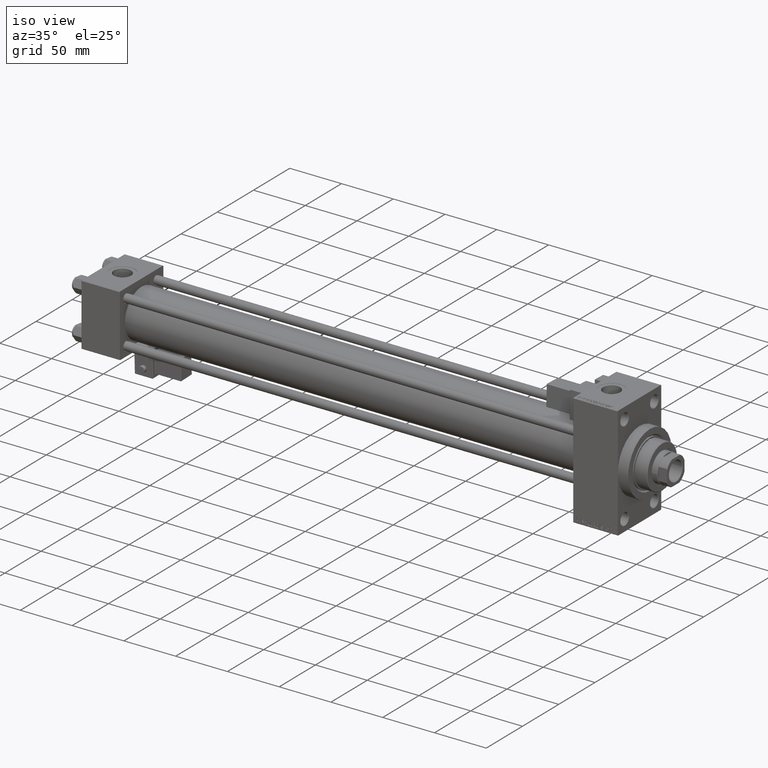
[diagram: clean part render]
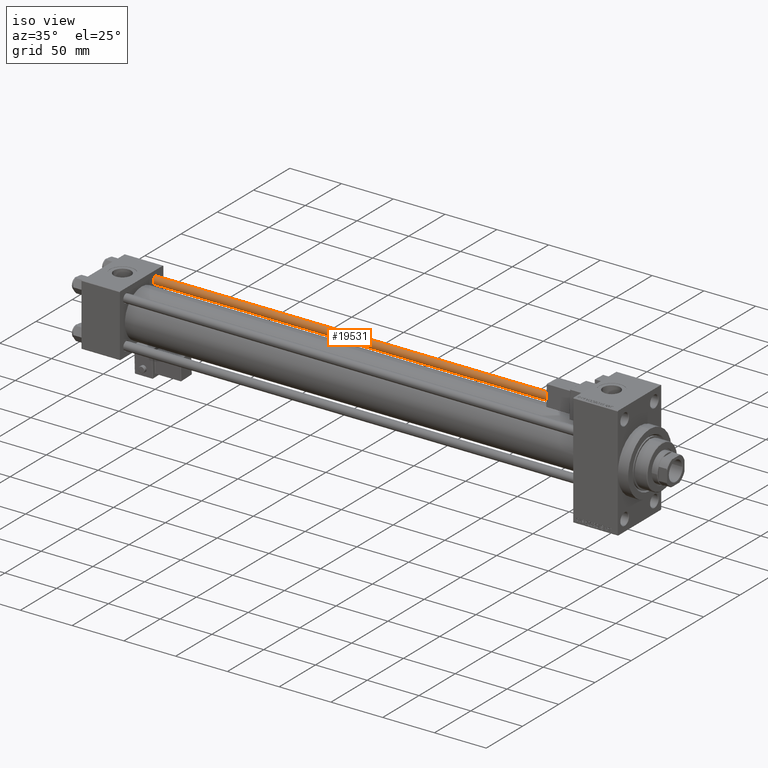
[diagram: same view with one face highlighted and labeled with its STEP entity id]
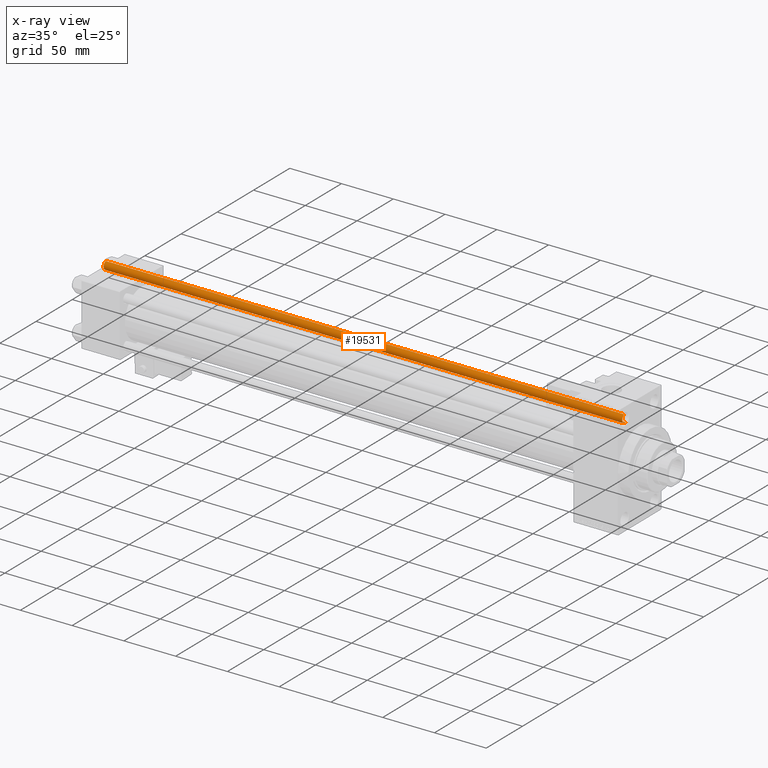
[diagram: x-ray of the same camera — body ghosted, the highlighted face saturated]
A machine part, iso view. The second image highlights one B-rep face of the part: STEP entity #19531.
The next image is the same camera in x-ray: the body ghosted, the highlighted face saturated — about 0% of this face is hidden behind the body in this view.
In plain terms, the highlighted cylindrical surface (edge-blend (fillet) strip) has radius 4 mm, axis along (-1, -0, 0).
Its self-contained STEP definition (entity closure, byte-faithful):
#868 = VERTEX_POINT ( 'NONE', #38161 ) ;
#5007 = DIRECTION ( 'NONE',  ( -0.000000000000000000, -0.000000000000000000, -1.000000000000000000 ) ) ;
#6607 = CIRCLE ( 'NONE', #14665, 4.000000000000000000 ) ;
#6878 = ORIENTED_EDGE ( 'NONE', *, *, #40574, .F. ) ;
#8108 = CARTESIAN_POINT ( 'NONE',  ( 4.000000000000000000, 4.898587196589412829E-16, 502.0000000000000000 ) ) ;
#8109 = AXIS2_PLACEMENT_3D ( 'NONE', #14132, #30460, #26679 ) ;
#8147 = CARTESIAN_POINT ( 'NONE',  ( 0.000000000000000000, 0.000000000000000000, 502.0000000000000000 ) ) ;
#9888 = VECTOR ( 'NONE', #5007, 1000.000000000000000 ) ;
#9909 = CARTESIAN_POINT ( 'NONE',  ( 4.000000000000000000, 4.898587196589412829E-16, 501.4999999999999432 ) ) ;
#10439 = DIRECTION ( 'NONE',  ( 0.000000000000000000, 0.000000000000000000, -1.000000000000000000 ) ) ;
#11668 = CYLINDRICAL_SURFACE ( 'NONE', #41022, 4.000000000000000000 ) ;
#11821 = EDGE_LOOP ( 'NONE', ( #6878, #13832, #46509, #31739 ) ) ;
#13707 = CIRCLE ( 'NONE', #8109, 4.000000000000000000 ) ;
#13832 = ORIENTED_EDGE ( 'NONE', *, *, #21892, .T. ) ;
#14132 = CARTESIAN_POINT ( 'NONE',  ( 0.000000000000000000, 0.000000000000000000, 0.4999999999999449329 ) ) ;
#14665 = AXIS2_PLACEMENT_3D ( 'NONE', #15224, #10439, #26770 ) ;
#14762 = CARTESIAN_POINT ( 'NONE',  ( -4.000000000000000000, 0.000000000000000000, 501.4999999999999432 ) ) ;
#15224 = CARTESIAN_POINT ( 'NONE',  ( 0.000000000000000000, 0.000000000000000000, 501.4999999999999432 ) ) ;
#15801 = VERTEX_POINT ( 'NONE', #14762 ) ;
#18730 = DIRECTION ( 'NONE',  ( -0.000000000000000000, -0.000000000000000000, -1.000000000000000000 ) ) ;
#19229 = FACE_OUTER_BOUND ( 'NONE', #11821, .T. ) ;
#19531 = ADVANCED_FACE ( 'NONE', ( #19229 ), #11668, .T. ) ;
#19597 = CARTESIAN_POINT ( 'NONE',  ( -4.000000000000000000, 0.000000000000000000, 502.0000000000000000 ) ) ;
#21892 = EDGE_CURVE ( 'NONE', #27061, #15801, #6607, .T. ) ;
#22877 = LINE ( 'NONE', #19597, #9888 ) ;
#23437 = DIRECTION ( 'NONE',  ( -0.000000000000000000, -0.000000000000000000, -1.000000000000000000 ) ) ;
#26679 = DIRECTION ( 'NONE',  ( 1.000000000000000000, 0.000000000000000000, 0.000000000000000000 ) ) ;
#26770 = DIRECTION ( 'NONE',  ( 1.000000000000000000, 0.000000000000000000, 0.000000000000000000 ) ) ;
#27008 = DIRECTION ( 'NONE',  ( -1.000000000000000000, 0.000000000000000000, 0.000000000000000000 ) ) ;
#27061 = VERTEX_POINT ( 'NONE', #9909 ) ;
#27139 = CARTESIAN_POINT ( 'NONE',  ( -4.000000000000000000, 0.000000000000000000, 0.4999999999999449329 ) ) ;
#30460 = DIRECTION ( 'NONE',  ( -0.000000000000000000, -0.000000000000000000, 1.000000000000000000 ) ) ;
#31739 = ORIENTED_EDGE ( 'NONE', *, *, #32492, .T. ) ;
#32492 = EDGE_CURVE ( 'NONE', #37991, #868, #13707, .T. ) ;
#37967 = EDGE_CURVE ( 'NONE', #15801, #37991, #22877, .T. ) ;
#37991 = VERTEX_POINT ( 'NONE', #27139 ) ;
#38161 = CARTESIAN_POINT ( 'NONE',  ( 4.000000000000000000, 4.898587196589412829E-16, 0.4999999999999449329 ) ) ;
#40574 = EDGE_CURVE ( 'NONE', #27061, #868, #42564, .T. ) ;
#41022 = AXIS2_PLACEMENT_3D ( 'NONE', #8147, #18730, #27008 ) ;
#42564 = LINE ( 'NONE', #8108, #43728 ) ;
#43728 = VECTOR ( 'NONE', #23437, 1000.000000000000000 ) ;
#46509 = ORIENTED_EDGE ( 'NONE', *, *, #37967, .T. ) ;